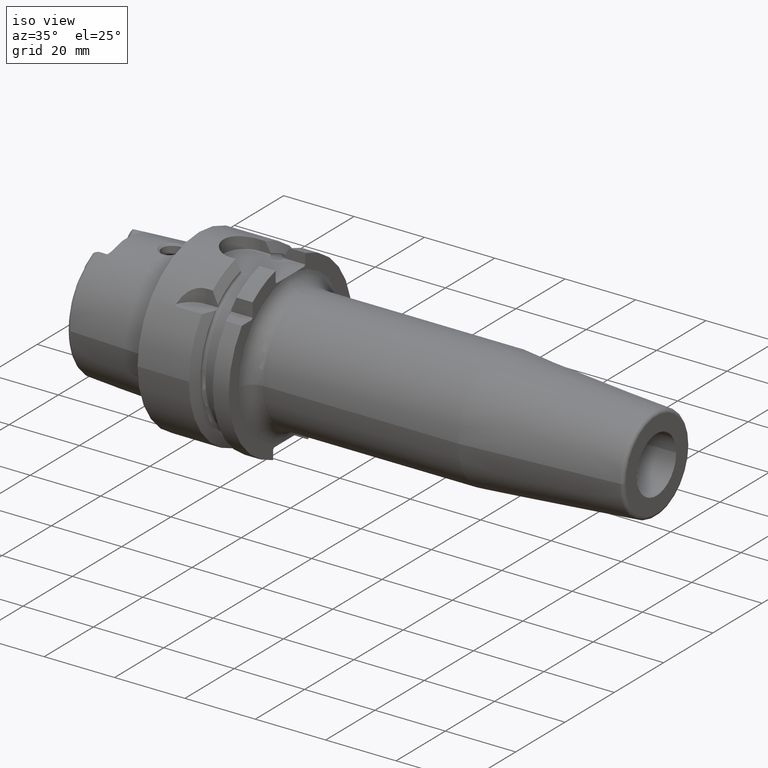
[diagram: clean part render]
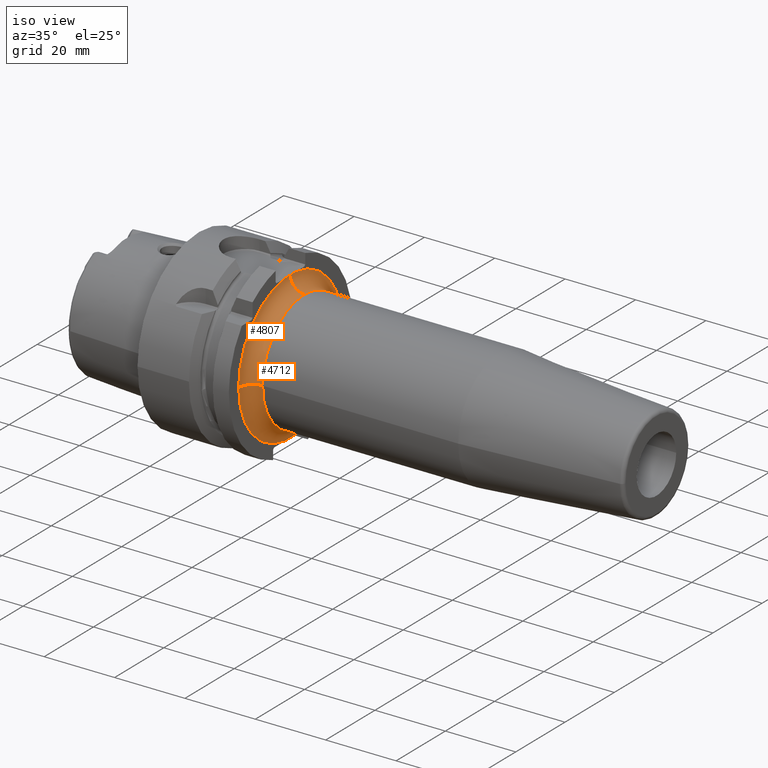
[diagram: same view with one multi-face feature highlighted, each face labeled with its STEP entity id]
A machine part, iso view. The highlighted faces form ONE feature: a constant-radius fillet chain: 2 tangent blend faces with common blend radius 4 mm. The faces share edges in the B-rep.
Their STEP definitions:
[1] entity #4712 (Torus):
#1363=CARTESIAN_POINT('',(2.595E1,2.046974272855E0,-2.089999574318E1));
#1364=CARTESIAN_POINT('',(2.595E1,1.592399548904E0,-2.089999574318E1));
#1365=CARTESIAN_POINT('',(2.595131598356E1,6.829923135530E-1,
-2.090000142522E1));
#1366=CARTESIAN_POINT('',(2.595131598355E1,-6.829922911623E-1,
-2.090000139695E1));
#1367=CARTESIAN_POINT('',(2.595E1,-1.592399626651E0,-2.089999579029E1));
#1368=CARTESIAN_POINT('',(2.595E1,-2.046974349280E0,-2.089999579029E1));
#1370=CARTESIAN_POINT('',(2.995E1,-2.1E1,3.865519015989E-13));
#1371=DIRECTION('',(0.E0,-1.840715080359E-14,-1.E0));
#1372=DIRECTION('',(-1.E0,0.E0,0.E0));
#1373=AXIS2_PLACEMENT_3D('',#1370,#1371,#1372);
#1375=CARTESIAN_POINT('',(2.995E1,0.E0,0.E0));
#1376=DIRECTION('',(1.E0,0.E0,0.E0));
#1377=DIRECTION('',(0.E0,-1.E0,0.E0));
#1378=AXIS2_PLACEMENT_3D('',#1375,#1376,#1377);
#1380=CARTESIAN_POINT('',(2.595E1,0.E0,0.E0));
#1381=DIRECTION('',(-1.E0,0.E0,0.E0));
#1382=DIRECTION('',(0.E0,9.747123516171E-2,9.952383424668E-1));
#1383=AXIS2_PLACEMENT_3D('',#1380,#1381,#1382);
#1401=CARTESIAN_POINT('',(2.595E1,0.E0,0.E0));
#1402=DIRECTION('',(1.E0,0.E0,0.E0));
#1403=DIRECTION('',(0.E0,-1.E0,0.E0));
#1404=AXIS2_PLACEMENT_3D('',#1401,#1402,#1403);
#1435=CARTESIAN_POINT('',(2.595125019537E1,-6.627908353566E-6,2.09E1));
#1515=CARTESIAN_POINT('',(2.595E1,2.046974210235E0,2.089999577856E1));
#1516=CARTESIAN_POINT('',(2.595E1,1.819946465814E0,2.089999577856E1));
#1517=CARTESIAN_POINT('',(2.595035776892E1,1.365576023885E0,2.090000197001E1));
#1518=CARTESIAN_POINT('',(2.595105365110E1,6.829780003698E-1,2.089999943714E1));
#1519=CARTESIAN_POINT('',(2.595125019718E1,2.277154364335E-1,2.09E1));
#1520=CARTESIAN_POINT('',(2.595125019537E1,-6.627908353566E-6,2.09E1));
#1522=CARTESIAN_POINT('',(2.995E1,-6.659620838557E-6,2.1E1));
#1523=DIRECTION('',(0.E0,-9.999999999999E-1,-3.171248018359E-7));
#1524=DIRECTION('',(-9.996874511566E-1,7.928120045813E-9,-2.499999999974E-2));
#1525=AXIS2_PLACEMENT_3D('',#1522,#1523,#1524);
#1527=CARTESIAN_POINT('',(2.995E1,0.E0,0.E0));
#1528=DIRECTION('',(1.E0,0.E0,0.E0));
#1529=DIRECTION('',(0.E0,1.E0,0.E0));
#1530=AXIS2_PLACEMENT_3D('',#1527,#1528,#1529);
#3261=CARTESIAN_POINT('',(2.995E1,1.7E1,0.E0));
#3262=CARTESIAN_POINT('',(2.995E1,-7.470572013599E-6,1.7E1));
#3263=VERTEX_POINT('',#3261);
#3264=VERTEX_POINT('',#3262);
#3265=CARTESIAN_POINT('',(2.995E1,-1.7E1,-3.612309409996E-12));
#3266=VERTEX_POINT('',#3265);
#3275=CARTESIAN_POINT('',(2.595E1,-2.1E1,-2.379526337012E-14));
#3276=CARTESIAN_POINT('',(2.595E1,-2.046896707588E0,-2.090000511647E1));
#3277=VERTEX_POINT('',#3275);
#3278=VERTEX_POINT('',#3276);
#3281=VERTEX_POINT('',#1435);
#3282=VERTEX_POINT('',#1515);
#3283=CARTESIAN_POINT('',(2.595E1,2.046974272855E0,-2.089999574318E1));
#3284=VERTEX_POINT('',#3283);
#4690=CARTESIAN_POINT('',(2.995E1,0.E0,0.E0));
#4691=DIRECTION('',(1.E0,0.E0,0.E0));
#4692=DIRECTION('',(0.E0,9.999897731153E-1,-4.522572817954E-3));
#4693=AXIS2_PLACEMENT_3D('',#4690,#4691,#4692);
#4694=TOROIDAL_SURFACE('',#4693,2.1E1,4.E0);
#4695=ORIENTED_EDGE('',*,*,#4659,.T.);
#4697=ORIENTED_EDGE('',*,*,#4696,.F.);
#4699=ORIENTED_EDGE('',*,*,#4698,.T.);
#4701=ORIENTED_EDGE('',*,*,#4700,.T.);
#4703=ORIENTED_EDGE('',*,*,#4702,.T.);
#4705=ORIENTED_EDGE('',*,*,#4704,.F.);
#4707=ORIENTED_EDGE('',*,*,#4706,.F.);
#4709=ORIENTED_EDGE('',*,*,#4708,.T.);
#4710=EDGE_LOOP('',(#4695,#4697,#4699,#4701,#4703,#4705,#4707,#4709));
#4711=FACE_OUTER_BOUND('',#4710,.F.);
#4712=ADVANCED_FACE('',(#4711),#4694,.F.);
#1369=B_SPLINE_CURVE_WITH_KNOTS('',3,(#1363,#1364,#1365,#1366,#1367,#1368),
.UNSPECIFIED.,.F.,.F.,(4,1,1,4),(0.E0,3.333333333333E-1,6.666666666667E-1,1.E0),
.UNSPECIFIED.);
#1374=CIRCLE('',#1373,4.E0);
#1379=CIRCLE('',#1378,1.7E1);
#1384=CIRCLE('',#1383,2.1E1);
#1405=CIRCLE('',#1404,2.1E1);
#1521=B_SPLINE_CURVE_WITH_KNOTS('',3,(#1515,#1516,#1517,#1518,#1519,#1520),
.UNSPECIFIED.,.F.,.F.,(4,1,1,4),(0.E0,3.333333333333E-1,6.666666666667E-1,1.E0),
.UNSPECIFIED.);
#1526=CIRCLE('',#1525,4.E0);
#1531=CIRCLE('',#1530,1.7E1);
#4659=EDGE_CURVE('',#3284,#3278,#1369,.T.);
#4696=EDGE_CURVE('',#3277,#3278,#1405,.T.);
#4698=EDGE_CURVE('',#3277,#3266,#1374,.T.);
#4700=EDGE_CURVE('',#3266,#3263,#1379,.T.);
#4702=EDGE_CURVE('',#3263,#3264,#1531,.T.);
#4704=EDGE_CURVE('',#3281,#3264,#1526,.T.);
#4706=EDGE_CURVE('',#3282,#3281,#1521,.T.);
#4708=EDGE_CURVE('',#3282,#3284,#1384,.T.);
[2] entity #4807 (Torus):
#1370=CARTESIAN_POINT('',(2.995E1,-2.1E1,3.865519015989E-13));
#1371=DIRECTION('',(0.E0,-1.840715080359E-14,-1.E0));
#1372=DIRECTION('',(-1.E0,0.E0,0.E0));
#1373=AXIS2_PLACEMENT_3D('',#1370,#1371,#1372);
#1430=CARTESIAN_POINT('',(2.595E1,0.E0,0.E0));
#1431=DIRECTION('',(1.E0,0.E0,0.E0));
#1432=DIRECTION('',(0.E0,-9.747123103172E-2,9.952383428713E-1));
#1433=AXIS2_PLACEMENT_3D('',#1430,#1431,#1432);
#1435=CARTESIAN_POINT('',(2.595125019537E1,-6.627908353566E-6,2.09E1));
#1436=CARTESIAN_POINT('',(2.595125019357E1,-2.277328798786E-1,2.09E1));
#1437=CARTESIAN_POINT('',(2.595105363376E1,-6.830001858486E-1,
2.089999943084E1));
#1438=CARTESIAN_POINT('',(2.595035774206E1,-1.365600355617E0,2.090000199207E1));
#1439=CARTESIAN_POINT('',(2.595E1,-1.819957051462E0,2.089999573127E1));
#1440=CARTESIAN_POINT('',(2.595E1,-2.046974663825E0,2.089999573127E1));
#1522=CARTESIAN_POINT('',(2.995E1,-6.659620838557E-6,2.1E1));
#1523=DIRECTION('',(0.E0,-9.999999999999E-1,-3.171248018359E-7));
#1524=DIRECTION('',(-9.996874511566E-1,7.928120045813E-9,-2.499999999974E-2));
#1525=AXIS2_PLACEMENT_3D('',#1522,#1523,#1524);
#1537=CARTESIAN_POINT('',(2.995E1,0.E0,0.E0));
#1538=DIRECTION('',(1.E0,0.E0,0.E0));
#1539=DIRECTION('',(0.E0,-4.394454125646E-7,9.999999999999E-1));
#1540=AXIS2_PLACEMENT_3D('',#1537,#1538,#1539);
#3262=CARTESIAN_POINT('',(2.995E1,-7.470572013599E-6,1.7E1));
#3264=VERTEX_POINT('',#3262);
#3265=CARTESIAN_POINT('',(2.995E1,-1.7E1,-3.612309409996E-12));
#3266=VERTEX_POINT('',#3265);
#3275=CARTESIAN_POINT('',(2.595E1,-2.1E1,-2.379526337012E-14));
#3277=VERTEX_POINT('',#3275);
#3279=CARTESIAN_POINT('',(2.595E1,-2.046895851666E0,2.090000520030E1));
#3280=VERTEX_POINT('',#3279);
#3281=VERTEX_POINT('',#1435);
#4794=CARTESIAN_POINT('',(2.995E1,0.E0,0.E0));
#4795=DIRECTION('',(1.E0,0.E0,0.E0));
#4796=DIRECTION('',(0.E0,1.485959642860E-3,-9.999988959614E-1));
#4797=AXIS2_PLACEMENT_3D('',#4794,#4795,#4796);
#4798=TOROIDAL_SURFACE('',#4797,2.1E1,4.E0);
#4799=ORIENTED_EDGE('',*,*,#4758,.F.);
#4800=ORIENTED_EDGE('',*,*,#4768,.F.);
#4801=ORIENTED_EDGE('',*,*,#4704,.T.);
#4803=ORIENTED_EDGE('',*,*,#4802,.T.);
#4804=ORIENTED_EDGE('',*,*,#4698,.F.);
#4805=EDGE_LOOP('',(#4799,#4800,#4801,#4803,#4804));
#4806=FACE_OUTER_BOUND('',#4805,.F.);
#4807=ADVANCED_FACE('',(#4806),#4798,.F.);
#1374=CIRCLE('',#1373,4.E0);
#1434=CIRCLE('',#1433,2.1E1);
#1441=B_SPLINE_CURVE_WITH_KNOTS('',3,(#1435,#1436,#1437,#1438,#1439,#1440),
.UNSPECIFIED.,.F.,.F.,(4,1,1,4),(0.E0,3.333333333333E-1,6.666666666667E-1,1.E0),
.UNSPECIFIED.);
#1526=CIRCLE('',#1525,4.E0);
#1541=CIRCLE('',#1540,1.7E1);
#4698=EDGE_CURVE('',#3277,#3266,#1374,.T.);
#4704=EDGE_CURVE('',#3281,#3264,#1526,.T.);
#4758=EDGE_CURVE('',#3280,#3277,#1434,.T.);
#4768=EDGE_CURVE('',#3281,#3280,#1441,.T.);
#4802=EDGE_CURVE('',#3264,#3266,#1541,.T.);